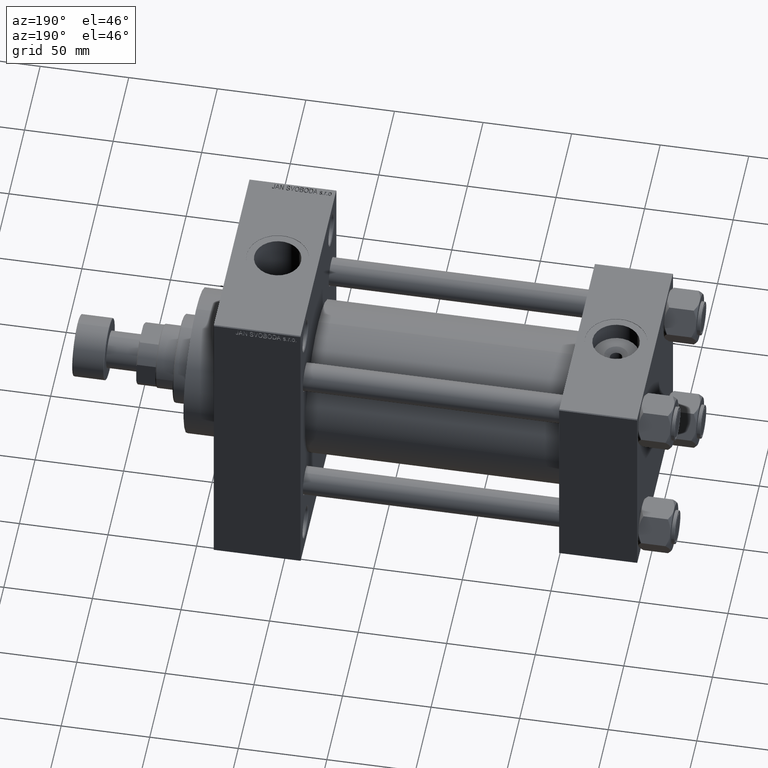
[diagram: clean part render]
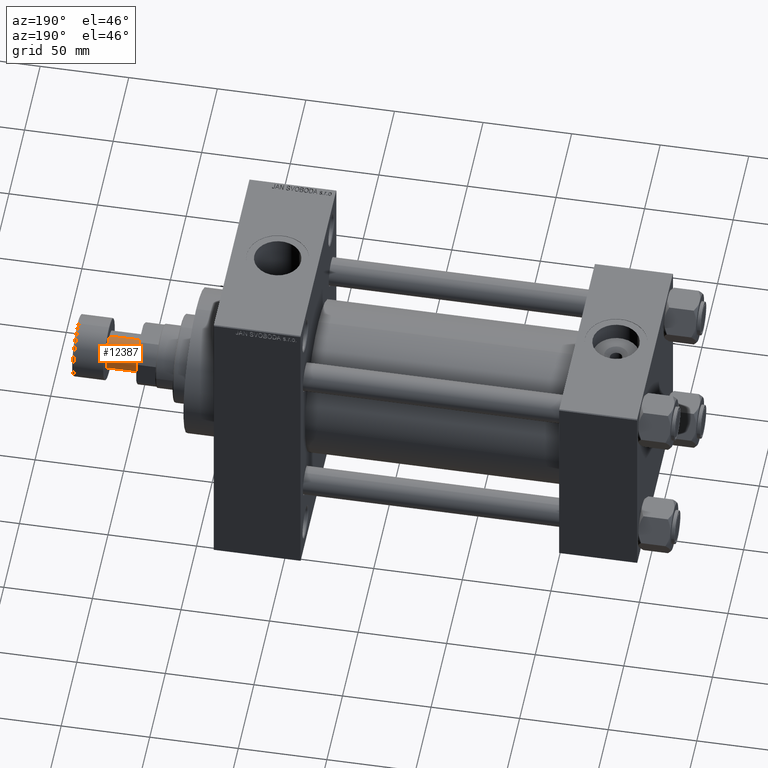
[diagram: same view with one face highlighted and labeled with its STEP entity id]
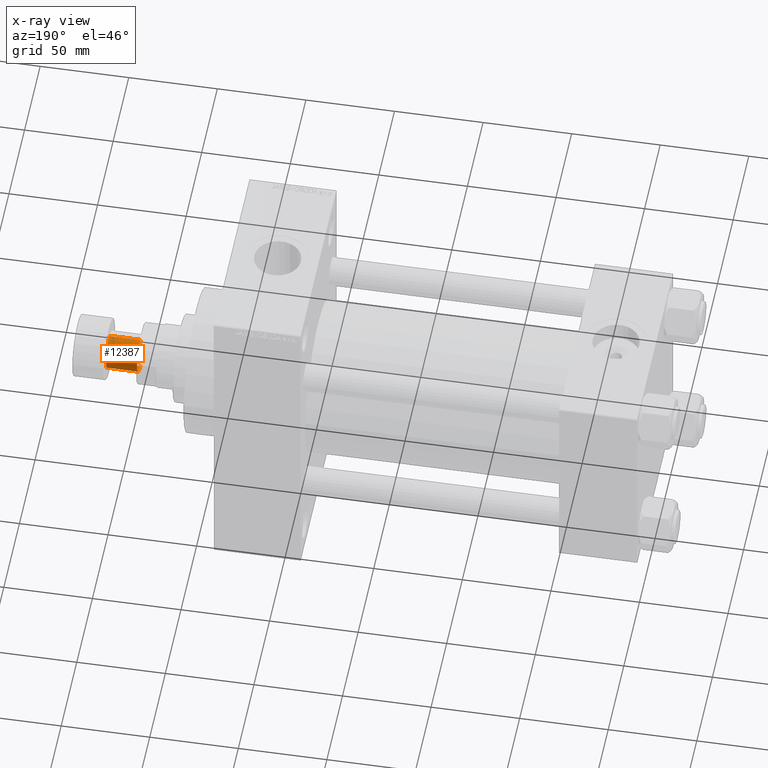
[diagram: x-ray of the same camera — body ghosted, the highlighted face saturated]
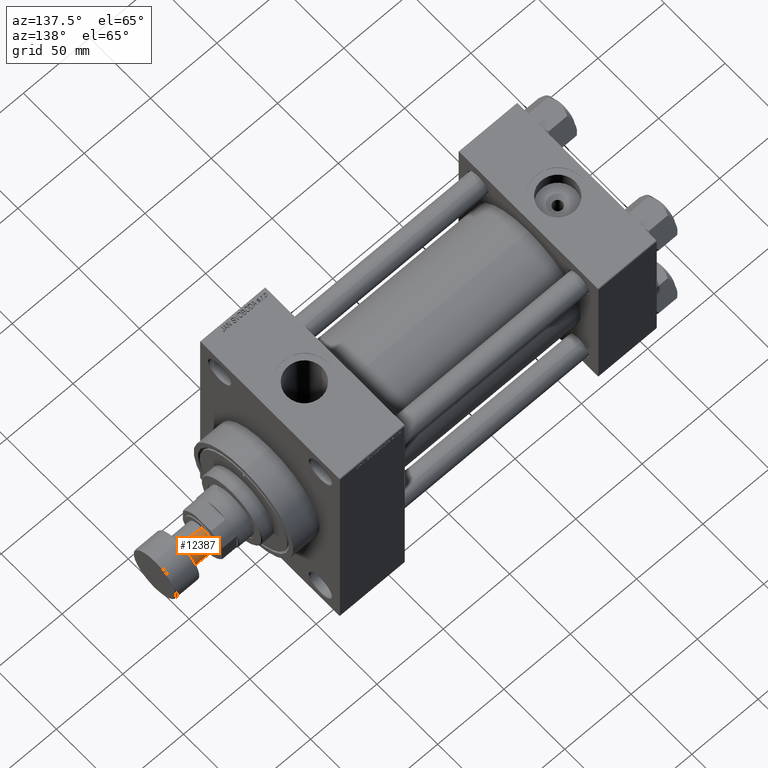
[diagram: same view with one face highlighted and labeled with its STEP entity id]
A machine part, auxiliary view. The second image highlights one B-rep face of the part: STEP entity #12387.
The next image is the same camera in x-ray: the body ghosted, the highlighted face saturated — about 0% of this face is hidden behind the body in this view.
A second angle (auxiliary view) of the same face is appended — the face is thin or edge-on in the first view.
In plain terms, the highlighted cylindrical surface (edge-blend (fillet) strip) has radius 10.5 mm, axis along (1, 0, 0).
Its self-contained STEP definition (entity closure, byte-faithful):
#206 = CARTESIAN_POINT ( 'NONE',  ( -10.50000000000000000, 1.285879139104720831E-15, -35.50000000000000711 ) ) ;
#2009 = CARTESIAN_POINT ( 'NONE',  ( -10.50000000000000000, 1.285879139104720831E-15, -18.00000000000000000 ) ) ;
#4127 = VECTOR ( 'NONE', #10082, 1000.000000000000000 ) ;
#4436 = DIRECTION ( 'NONE',  ( -1.000000000000000000, 0.000000000000000000, 0.000000000000000000 ) ) ;
#4769 = CARTESIAN_POINT ( 'NONE',  ( 10.50000000000000000, 0.000000000000000000, -35.50000000000000711 ) ) ;
#5963 = AXIS2_PLACEMENT_3D ( 'NONE', #37787, #11610, #32980 ) ;
#8101 = DIRECTION ( 'NONE',  ( 0.000000000000000000, 0.000000000000000000, -1.000000000000000000 ) ) ;
#10082 = DIRECTION ( 'NONE',  ( -0.000000000000000000, -0.000000000000000000, 1.000000000000000000 ) ) ;
#10403 = AXIS2_PLACEMENT_3D ( 'NONE', #30138, #8101, #4436 ) ;
#11610 = DIRECTION ( 'NONE',  ( 0.000000000000000000, 0.000000000000000000, -1.000000000000000000 ) ) ;
#11988 = CIRCLE ( 'NONE', #10403, 10.50000000000000000 ) ;
#12387 = ADVANCED_FACE ( 'NONE', ( #42253 ), #39319, .T. ) ;
#12853 = DIRECTION ( 'NONE',  ( -0.000000000000000000, -0.000000000000000000, 1.000000000000000000 ) ) ;
#16154 = CIRCLE ( 'NONE', #5963, 10.50000000000000000 ) ;
#18195 = CARTESIAN_POINT ( 'NONE',  ( 10.50000000000000000, 0.000000000000000000, -35.50000000000000711 ) ) ;
#18888 = EDGE_LOOP ( 'NONE', ( #32781, #40831, #28885, #23862 ) ) ;
#19473 = LINE ( 'NONE', #4769, #47137 ) ;
#19576 = VERTEX_POINT ( 'NONE', #206 ) ;
#20034 = CARTESIAN_POINT ( 'NONE',  ( 0.000000000000000000, 0.000000000000000000, -35.50000000000000711 ) ) ;
#20142 = CARTESIAN_POINT ( 'NONE',  ( 10.50000000000000000, 0.000000000000000000, -18.00000000000000000 ) ) ;
#23709 = AXIS2_PLACEMENT_3D ( 'NONE', #20034, #46862, #35657 ) ;
#23862 = ORIENTED_EDGE ( 'NONE', *, *, #27684, .F. ) ;
#25714 = VERTEX_POINT ( 'NONE', #18195 ) ;
#25909 = VERTEX_POINT ( 'NONE', #2009 ) ;
#27684 = EDGE_CURVE ( 'NONE', #25714, #27922, #19473, .T. ) ;
#27922 = VERTEX_POINT ( 'NONE', #20142 ) ;
#28195 = LINE ( 'NONE', #36513, #4127 ) ;
#28885 = ORIENTED_EDGE ( 'NONE', *, *, #33335, .T. ) ;
#30138 = CARTESIAN_POINT ( 'NONE',  ( 0.000000000000000000, 0.000000000000000000, -35.50000000000000711 ) ) ;
#32781 = ORIENTED_EDGE ( 'NONE', *, *, #45110, .F. ) ;
#32980 = DIRECTION ( 'NONE',  ( -1.000000000000000000, 0.000000000000000000, 0.000000000000000000 ) ) ;
#33335 = EDGE_CURVE ( 'NONE', #25909, #27922, #16154, .T. ) ;
#35657 = DIRECTION ( 'NONE',  ( 1.000000000000000000, 0.000000000000000000, 0.000000000000000000 ) ) ;
#36513 = CARTESIAN_POINT ( 'NONE',  ( -10.50000000000000000, 1.285879139104720831E-15, -35.50000000000000711 ) ) ;
#37787 = CARTESIAN_POINT ( 'NONE',  ( 0.000000000000000000, 0.000000000000000000, -18.00000000000000000 ) ) ;
#39319 = CYLINDRICAL_SURFACE ( 'NONE', #23709, 10.50000000000000000 ) ;
#40831 = ORIENTED_EDGE ( 'NONE', *, *, #42893, .T. ) ;
#42253 = FACE_OUTER_BOUND ( 'NONE', #18888, .T. ) ;
#42893 = EDGE_CURVE ( 'NONE', #19576, #25909, #28195, .T. ) ;
#45110 = EDGE_CURVE ( 'NONE', #19576, #25714, #11988, .T. ) ;
#46862 = DIRECTION ( 'NONE',  ( -0.000000000000000000, -0.000000000000000000, 1.000000000000000000 ) ) ;
#47137 = VECTOR ( 'NONE', #12853, 1000.000000000000000 ) ;